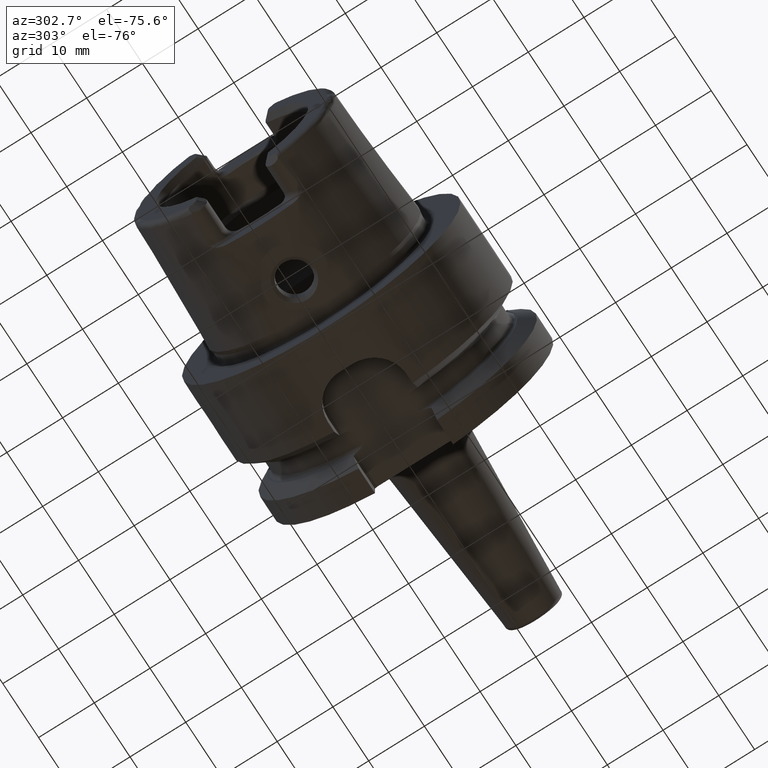
[diagram: clean part render]
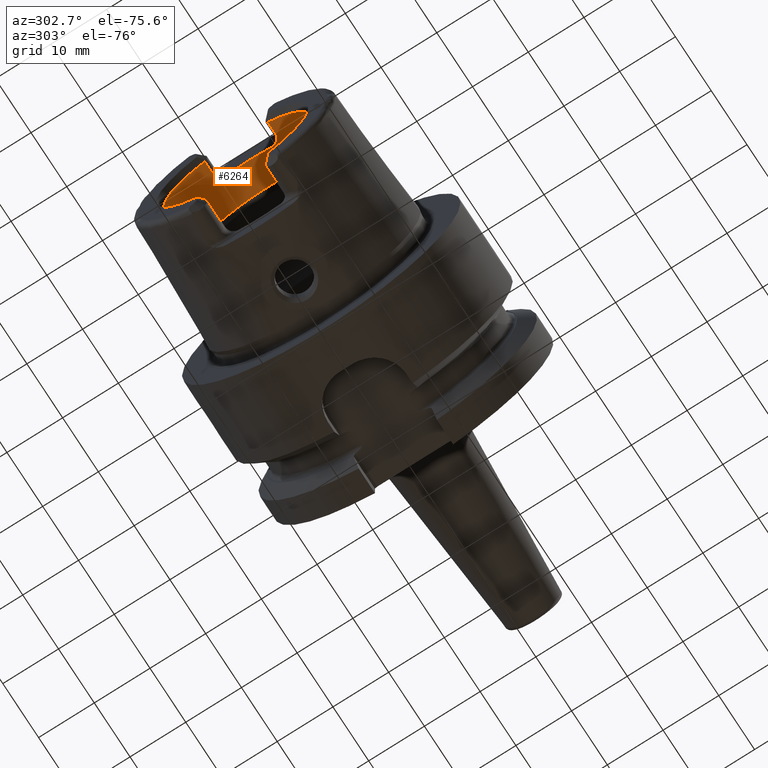
[diagram: same view with one face highlighted and labeled with its STEP entity id]
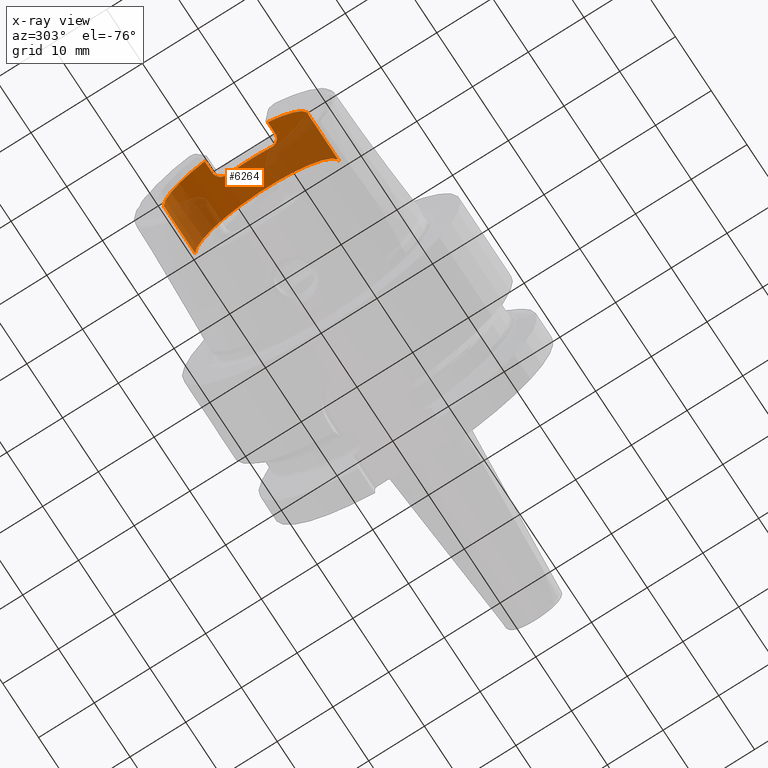
[diagram: x-ray of the same camera — body ghosted, the highlighted face saturated]
A machine part, auxiliary view. The second image highlights one B-rep face of the part: STEP entity #6264.
The next image is the same camera in x-ray: the body ghosted, the highlighted face saturated — about 49% of this face is hidden behind the body in this view.
In plain terms, the highlighted cylindrical surface (partial cylindrical patch) has radius 13.021 mm, axis along (1, 0, 0).
Its self-contained STEP definition (entity closure, byte-faithful):
#159=CARTESIAN_POINT('',(-2.375E1,0.E0,0.E0));
#160=DIRECTION('',(1.E0,0.E0,0.E0));
#161=DIRECTION('',(0.E0,1.E0,0.E0));
#162=AXIS2_PLACEMENT_3D('',#159,#160,#161);
#191=CARTESIAN_POINT('',(-2.375E1,0.E0,0.E0));
#192=DIRECTION('',(1.E0,0.E0,0.E0));
#193=DIRECTION('',(0.E0,-4.349817201113E-1,9.004392834439E-1));
#194=AXIS2_PLACEMENT_3D('',#191,#192,#193);
#505=DIRECTION('',(-1.E0,0.E0,0.E0));
#506=VECTOR('',#505,8.766098951869E0);
#507=CARTESIAN_POINT('',(-1.498390104813E1,1.3021E1,0.E0));
#508=LINE('',#507,#506);
#514=DIRECTION('',(-1.E0,0.E0,0.E0));
#515=VECTOR('',#514,8.766098951869E0);
#516=CARTESIAN_POINT('',(-1.498390104813E1,-1.3021E1,0.E0));
#517=LINE('',#516,#515);
#2526=DIRECTION('',(1.E0,0.E0,0.E0));
#2527=VECTOR('',#2526,2.05E0);
#2528=CARTESIAN_POINT('',(-2.375E1,5.663896977569E0,1.172461990972E1));
#2529=LINE('',#2528,#2527);
#2530=CARTESIAN_POINT('',(-2.001132486541E1,3.87E0,1.243259992922E1));
#2531=CARTESIAN_POINT('',(-2.000894931913E1,3.948091654476E0,1.240829168279E1));
#2532=CARTESIAN_POINT('',(-2.001441309205E1,4.102870364683E0,1.235850704973E1));
#2533=CARTESIAN_POINT('',(-2.005340937126E1,4.332575060022E0,1.227984117765E1));
#2534=CARTESIAN_POINT('',(-2.012180096637E1,4.554379111810E0,1.219925586913E1));
#2535=CARTESIAN_POINT('',(-2.021759596237E1,4.764243794041E0,1.211875654714E1));
#2536=CARTESIAN_POINT('',(-2.033971110869E1,4.958984425978E0,1.204028059499E1));
#2537=CARTESIAN_POINT('',(-2.048429552224E1,5.134450973300E0,1.196639092679E1));
#2538=CARTESIAN_POINT('',(-2.064814688581E1,5.287549372907E0,1.189942311510E1));
#2539=CARTESIAN_POINT('',(-2.082965354262E1,5.418141852277E0,1.184043301133E1));
#2540=CARTESIAN_POINT('',(-2.102911024602E1,5.524630321580E0,1.179103046127E1));
#2541=CARTESIAN_POINT('',(-2.124372880594E1,5.603842524286E0,1.175351168471E1));
#2542=CARTESIAN_POINT('',(-2.146977527645E1,5.652930353736E0,1.172992742962E1));
#2543=CARTESIAN_POINT('',(-2.162259884466E1,5.663896977569E0,1.172461990972E1));
#2544=CARTESIAN_POINT('',(-2.17E1,5.663896977569E0,1.172461990972E1));
#2546=CARTESIAN_POINT('',(-2.001132486541E1,-3.87E0,1.243259992922E1));
#2547=CARTESIAN_POINT('',(-2.001132486541E1,-3.369759291875E0,
1.258831406395E1));
#2548=CARTESIAN_POINT('',(-2.001132486543E1,-2.350461057242E0,
1.283928497214E1));
#2549=CARTESIAN_POINT('',(-2.001132486542E1,-7.873060254893E-1,
1.302889312722E1));
#2550=CARTESIAN_POINT('',(-2.001132486542E1,7.873060254895E-1,
1.302889312722E1));
#2551=CARTESIAN_POINT('',(-2.001132486543E1,2.350461057241E0,1.283928497214E1));
#2552=CARTESIAN_POINT('',(-2.001132486541E1,3.369759291877E0,1.258831406395E1));
#2553=CARTESIAN_POINT('',(-2.001132486541E1,3.87E0,1.243259992922E1));
#2555=CARTESIAN_POINT('',(-2.17E1,-5.663896977569E0,1.172461990972E1));
#2556=CARTESIAN_POINT('',(-2.162253385205E1,-5.663896977569E0,
1.172461990972E1));
#2557=CARTESIAN_POINT('',(-2.146960965794E1,-5.652887713534E0,
1.172994778184E1));
#2558=CARTESIAN_POINT('',(-2.124404762981E1,-5.603940373138E0,
1.175346518954E1));
#2559=CARTESIAN_POINT('',(-2.102890617342E1,-5.524545608259E0,
1.179107033680E1));
#2560=CARTESIAN_POINT('',(-2.083013782468E1,-5.418376947730E0,
1.184032277023E1));
#2561=CARTESIAN_POINT('',(-2.064964741780E1,-5.288706180038E0,
1.189890407446E1));
#2562=CARTESIAN_POINT('',(-2.048651365017E1,-5.136729908551E0,
1.196540626531E1));
#2563=CARTESIAN_POINT('',(-2.034224734480E1,-4.962438291891E0,
1.203885194320E1));
#2564=CARTESIAN_POINT('',(-2.021976173003E1,-4.768262064128E0,
1.211717470493E1));
#2565=CARTESIAN_POINT('',(-2.012314189077E1,-4.558070073865E0,
1.219788504272E1));
#2566=CARTESIAN_POINT('',(-2.005382652775E1,-4.334631930508E0,
1.227912648143E1));
#2567=CARTESIAN_POINT('',(-2.001445401734E1,-4.103717960171E0,
1.235823255338E1));
#2568=CARTESIAN_POINT('',(-2.000894190168E1,-3.948335489392E0,
1.240821578224E1));
#2569=CARTESIAN_POINT('',(-2.001132486541E1,-3.87E0,1.243259992922E1));
#2571=DIRECTION('',(1.E0,0.E0,0.E0));
#2572=VECTOR('',#2571,2.05E0);
#2573=CARTESIAN_POINT('',(-2.375E1,-5.663896977569E0,1.172461990972E1));
#2574=LINE('',#2573,#2572);
#2575=CARTESIAN_POINT('',(-1.498390104813E1,0.E0,0.E0));
#2576=DIRECTION('',(1.E0,0.E0,0.E0));
#2577=DIRECTION('',(0.E0,1.E0,0.E0));
#2578=AXIS2_PLACEMENT_3D('',#2575,#2576,#2577);
#2819=CARTESIAN_POINT('',(-2.17E1,5.663896977569E0,1.172461990972E1));
#2820=VERTEX_POINT('',#2819);
#2821=CARTESIAN_POINT('',(-2.001132486541E1,3.87E0,1.243259992922E1));
#2822=VERTEX_POINT('',#2821);
#2823=CARTESIAN_POINT('',(-2.17E1,-5.663896977569E0,1.172461990972E1));
#2824=VERTEX_POINT('',#2823);
#2825=CARTESIAN_POINT('',(-2.001132486541E1,-3.87E0,1.243259992922E1));
#2826=VERTEX_POINT('',#2825);
#3106=CARTESIAN_POINT('',(-1.498390104813E1,1.3021E1,0.E0));
#3107=VERTEX_POINT('',#3106);
#3108=CARTESIAN_POINT('',(-2.375E1,1.3021E1,0.E0));
#3109=VERTEX_POINT('',#3108);
#3118=CARTESIAN_POINT('',(-1.498390104813E1,-1.3021E1,0.E0));
#3119=VERTEX_POINT('',#3118);
#3120=CARTESIAN_POINT('',(-2.375E1,-1.3021E1,0.E0));
#3121=VERTEX_POINT('',#3120);
#3122=CARTESIAN_POINT('',(-2.375E1,5.663896977569E0,1.172461990972E1));
#3123=VERTEX_POINT('',#3122);
#3124=CARTESIAN_POINT('',(-2.375E1,-5.663896977569E0,1.172461990972E1));
#3125=VERTEX_POINT('',#3124);
#6243=CARTESIAN_POINT('',(-2.66425E1,0.E0,0.E0));
#6244=DIRECTION('',(1.E0,0.E0,0.E0));
#6245=DIRECTION('',(0.E0,-1.E0,0.E0));
#6246=AXIS2_PLACEMENT_3D('',#6243,#6244,#6245);
#6247=CYLINDRICAL_SURFACE('',#6246,1.3021E1);
#6248=ORIENTED_EDGE('',*,*,#3418,.T.);
#6250=ORIENTED_EDGE('',*,*,#6249,.F.);
#6252=ORIENTED_EDGE('',*,*,#6251,.F.);
#6254=ORIENTED_EDGE('',*,*,#6253,.F.);
#6256=ORIENTED_EDGE('',*,*,#6255,.F.);
#6257=ORIENTED_EDGE('',*,*,#3383,.T.);
#6258=ORIENTED_EDGE('',*,*,#3644,.F.);
#6259=ORIENTED_EDGE('',*,*,#6223,.F.);
#6260=ORIENTED_EDGE('',*,*,#3640,.T.);
#6261=ORIENTED_EDGE('',*,*,#3363,.T.);
#6262=EDGE_LOOP('',(#6248,#6250,#6252,#6254,#6256,#6257,#6258,#6259,#6260,
#6261));
#6263=FACE_OUTER_BOUND('',#6262,.F.);
#6264=ADVANCED_FACE('',(#6263),#6247,.F.);
#163=CIRCLE('',#162,1.3021E1);
#195=CIRCLE('',#194,1.3021E1);
#2545=B_SPLINE_CURVE_WITH_KNOTS('',3,(#2530,#2531,#2532,#2533,#2534,#2535,#2536,
#2537,#2538,#2539,#2540,#2541,#2542,#2543,#2544),.UNSPECIFIED.,.F.,.F.,(4,1,1,1,
1,1,1,1,1,1,1,1,4),(0.E0,8.333333333333E-2,1.666666666667E-1,2.5E-1,
3.333333333333E-1,4.166666666667E-1,5.E-1,5.833333333333E-1,6.666666666667E-1,
7.5E-1,8.333333333333E-1,9.166666666667E-1,1.E0),.UNSPECIFIED.);
#2554=B_SPLINE_CURVE_WITH_KNOTS('',3,(#2546,#2547,#2548,#2549,#2550,#2551,#2552,
#2553),.UNSPECIFIED.,.F.,.F.,(4,1,1,1,1,4),(0.E0,2.E-1,4.E-1,6.E-1,8.E-1,1.E0),
.UNSPECIFIED.);
#2570=B_SPLINE_CURVE_WITH_KNOTS('',3,(#2555,#2556,#2557,#2558,#2559,#2560,#2561,
#2562,#2563,#2564,#2565,#2566,#2567,#2568,#2569),.UNSPECIFIED.,.F.,.F.,(4,1,1,1,
1,1,1,1,1,1,1,1,4),(0.E0,8.333333333333E-2,1.666666666667E-1,2.5E-1,
3.333333333333E-1,4.166666666667E-1,5.E-1,5.833333333333E-1,6.666666666667E-1,
7.5E-1,8.333333333333E-1,9.166666666667E-1,1.E0),.UNSPECIFIED.);
#2579=CIRCLE('',#2578,1.3021E1);
#3363=EDGE_CURVE('',#3109,#3123,#163,.T.);
#3383=EDGE_CURVE('',#3125,#3121,#195,.T.);
#3418=EDGE_CURVE('',#3123,#2820,#2529,.T.);
#3640=EDGE_CURVE('',#3107,#3109,#508,.T.);
#3644=EDGE_CURVE('',#3119,#3121,#517,.T.);
#6223=EDGE_CURVE('',#3107,#3119,#2579,.T.);
#6249=EDGE_CURVE('',#2822,#2820,#2545,.T.);
#6251=EDGE_CURVE('',#2826,#2822,#2554,.T.);
#6253=EDGE_CURVE('',#2824,#2826,#2570,.T.);
#6255=EDGE_CURVE('',#3125,#2824,#2574,.T.);